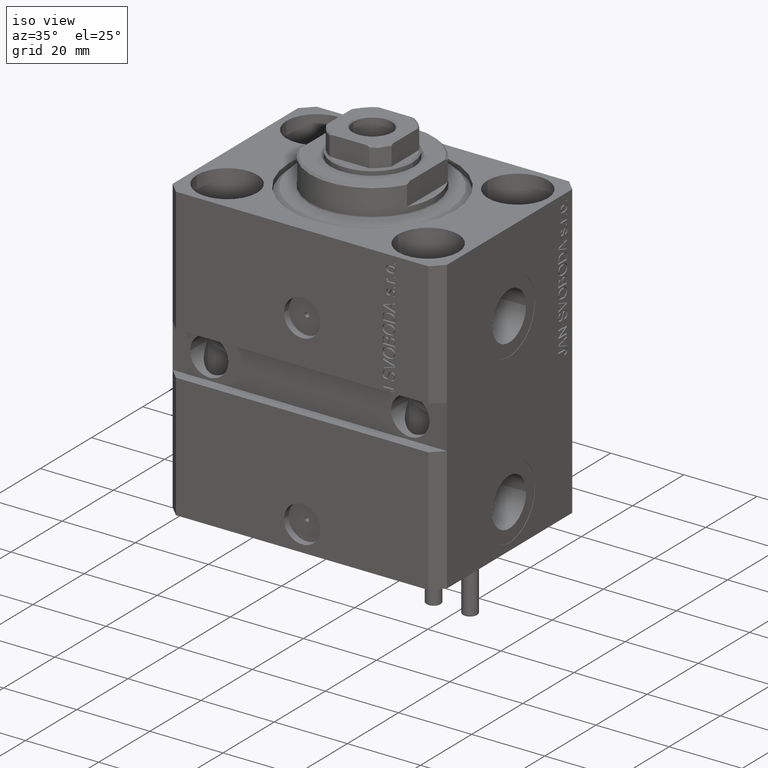
[diagram: clean part render]
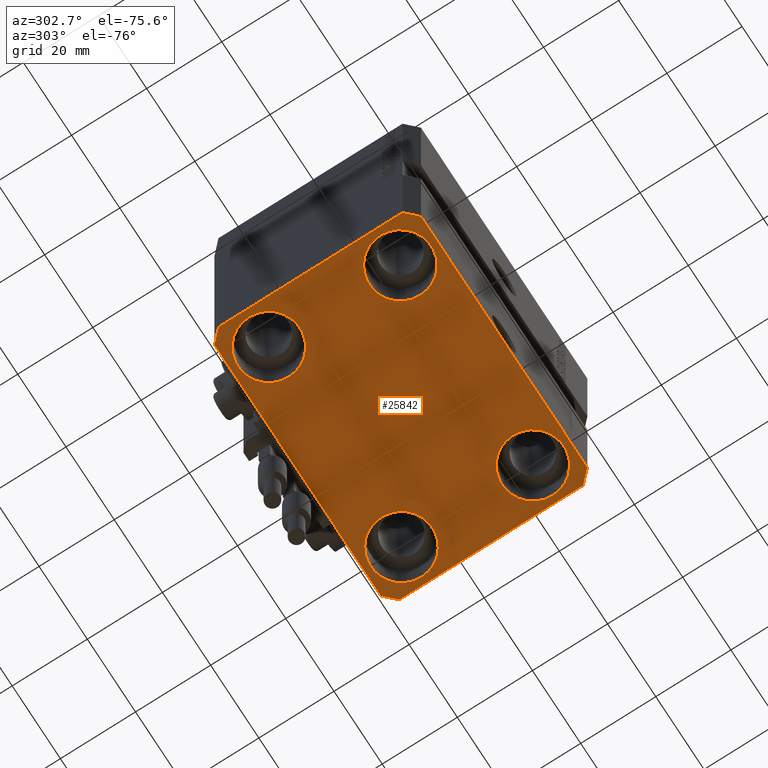
[diagram: tour spotlight — one face highlighted and labeled with its STEP entity id]
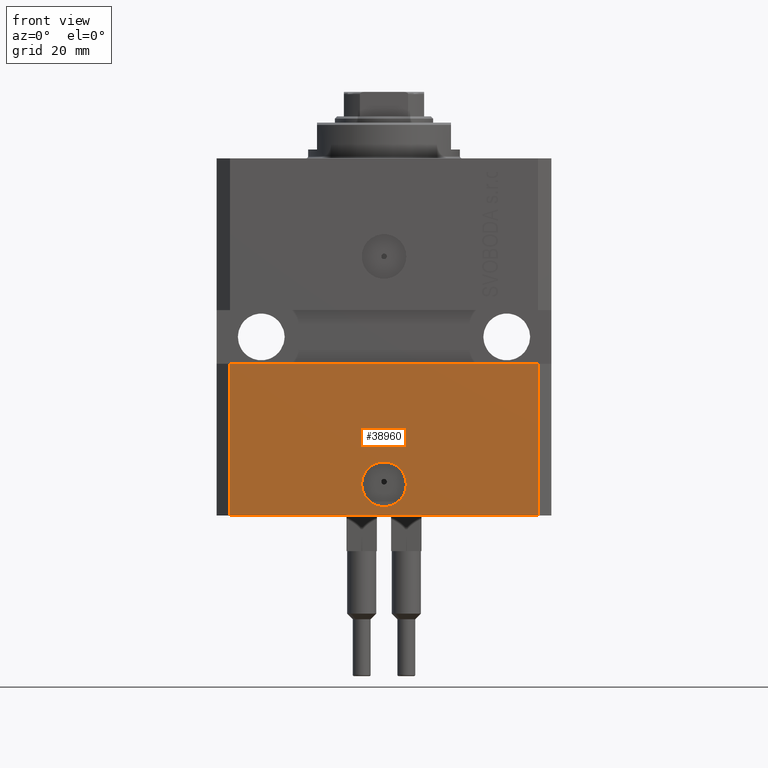
[diagram: tour spotlight — one face highlighted and labeled with its STEP entity id]
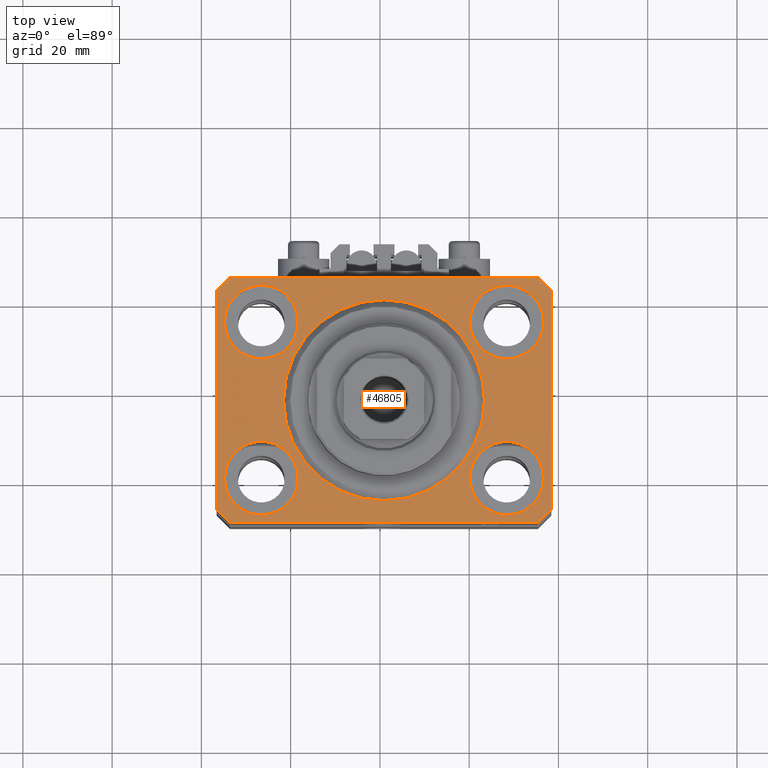
[diagram: tour spotlight — one face highlighted and labeled with its STEP entity id]
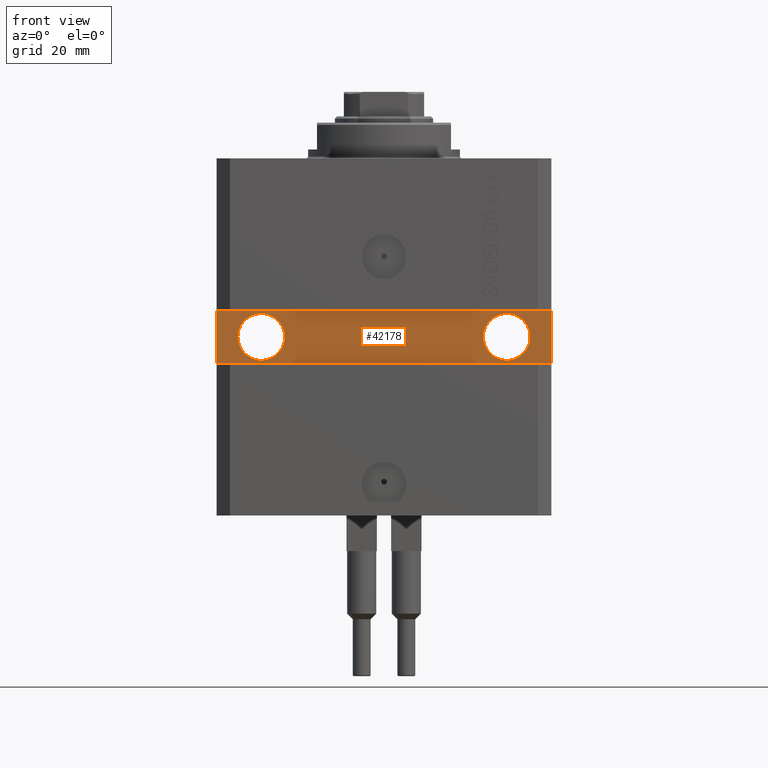
[diagram: tour spotlight — one face highlighted and labeled with its STEP entity id]
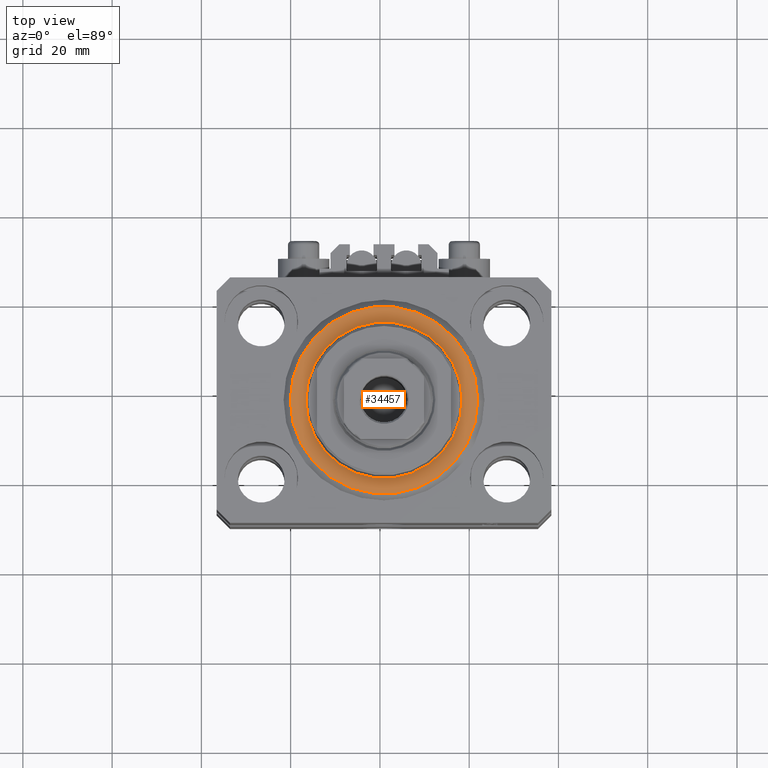
[diagram: tour spotlight — one face highlighted and labeled with its STEP entity id]
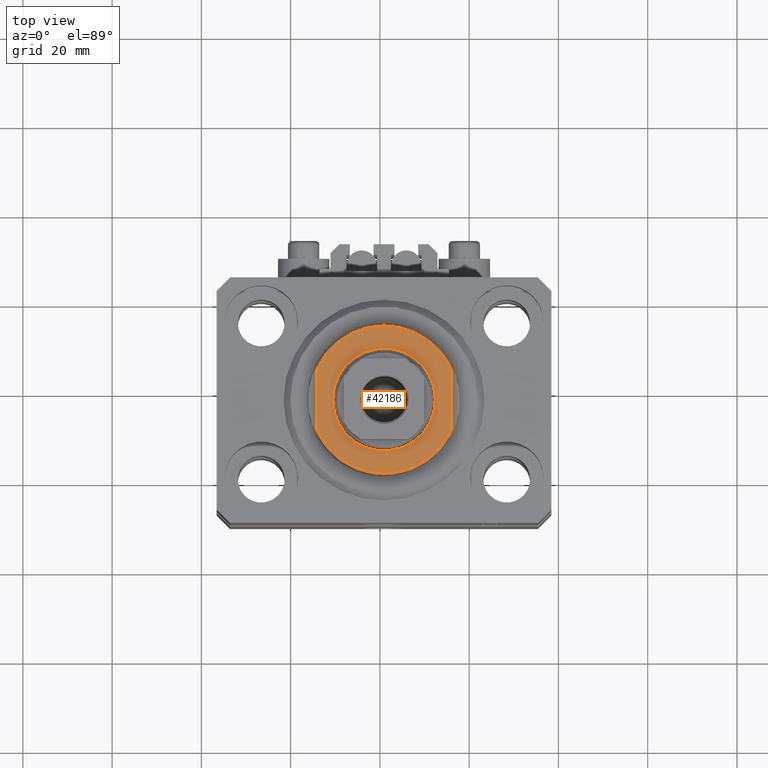
[diagram: tour spotlight — one face highlighted and labeled with its STEP entity id]
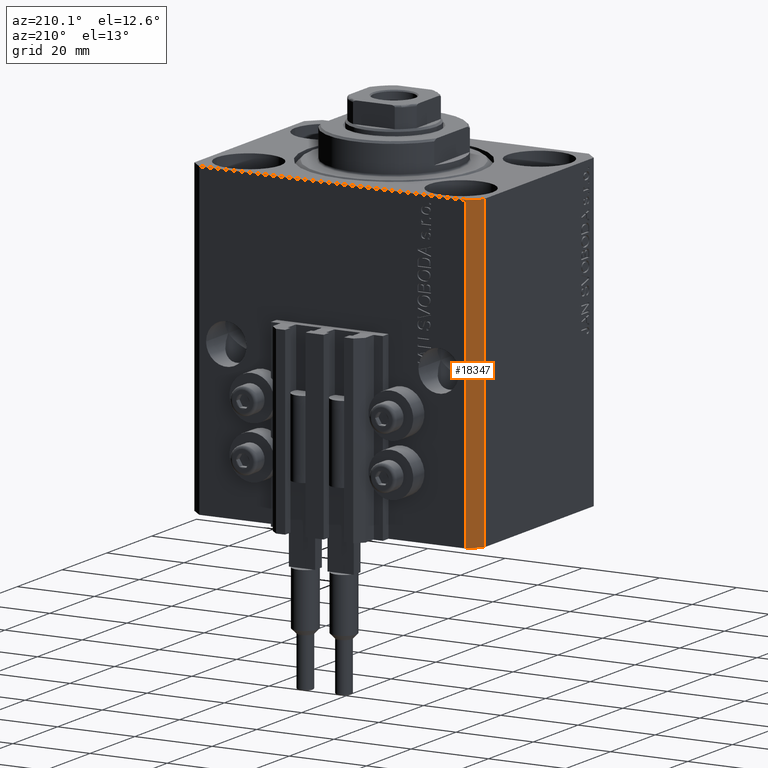
[diagram: tour spotlight — one face highlighted and labeled with its STEP entity id]
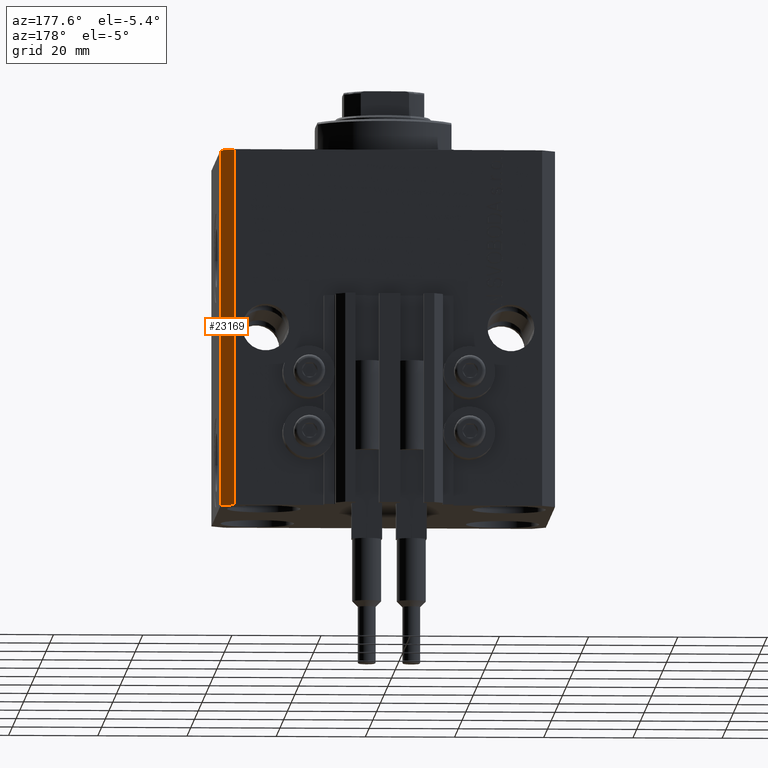
[diagram: tour spotlight — one face highlighted and labeled with its STEP entity id]
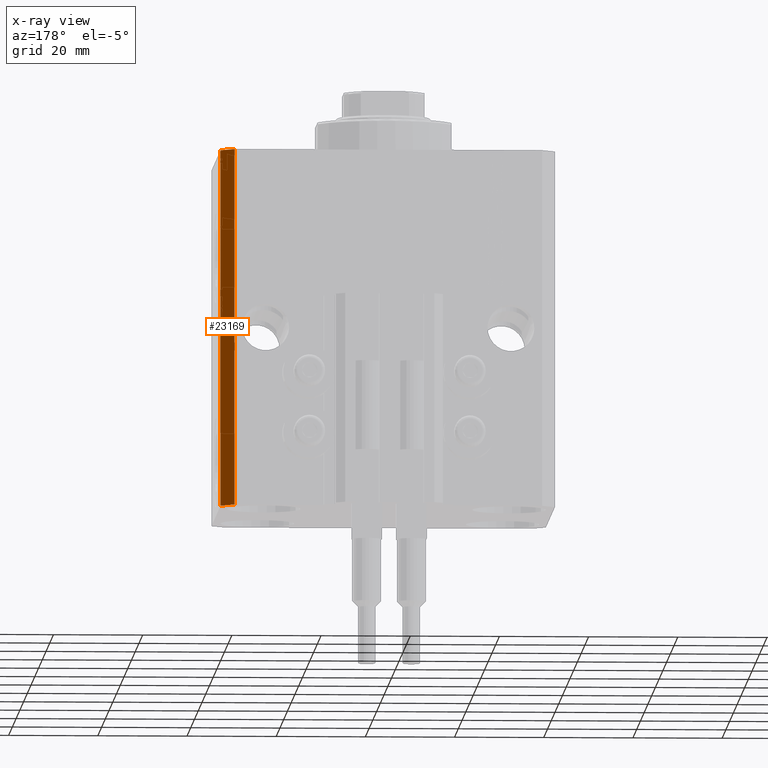
[diagram: x-ray of the same camera — body ghosted, this tour face saturated]
A machine part: a face-by-face anatomy tour. The part has 1116 B-rep faces; the first image is the clean iso view, then the 8 largest visible faces are spotlighted one at a time (largest first), each with its STEP entity span.

Face 1 — auxiliary view, entity #25842. In plain terms, the highlighted planar face has unit normal (0, 0, 1).
Definition (entity closure, byte-faithful):
#22 = FACE_BOUND ( 'NONE', #45294, .T. ) ;
#766 = VERTEX_POINT ( 'NONE', #40538 ) ;
#1073 = EDGE_CURVE ( 'NONE', #3069, #29796, #27669, .T. ) ;
#1632 = DIRECTION ( 'NONE',  ( 1.000000000000000000, 0.000000000000000000, 0.000000000000000000 ) ) ;
#1770 = EDGE_LOOP ( 'NONE', ( #36707, #7430, #33067, #47269, #34031, #39716, #23382, #20249 ) ) ;
#2260 = DIRECTION ( 'NONE',  ( 1.000000000000000000, 0.000000000000000000, 0.000000000000000000 ) ) ;
#2615 = CARTESIAN_POINT ( 'NONE',  ( -37.49999999999999289, -24.50000000000000000, -80.00000000000000000 ) ) ;
#2793 = VERTEX_POINT ( 'NONE', #18978 ) ;
#3069 = VERTEX_POINT ( 'NONE', #32662 ) ;
#3157 = EDGE_CURVE ( 'NONE', #44984, #30299, #44667, .T. ) ;
#3746 = DIRECTION ( 'NONE',  ( 0.7071067811865483499, -0.7071067811865466846, 0.000000000000000000 ) ) ;
#3748 = LINE ( 'NONE', #15069, #24715 ) ;
#3867 = DIRECTION ( 'NONE',  ( 0.000000000000000000, 0.000000000000000000, 1.000000000000000000 ) ) ;
#4248 = CARTESIAN_POINT ( 'NONE',  ( 27.49999999999999645, 17.50000000000001066, -80.00000000000000000 ) ) ;
#4337 = FACE_OUTER_BOUND ( 'NONE', #1770, .T. ) ;
#4560 = FACE_BOUND ( 'NONE', #22302, .T. ) ;
#6950 = CIRCLE ( 'NONE', #23121, 8.250000000000000000 ) ;
#7430 = ORIENTED_EDGE ( 'NONE', *, *, #31462, .F. ) ;
#8086 = VERTEX_POINT ( 'NONE', #22115 ) ;
#8500 = ORIENTED_EDGE ( 'NONE', *, *, #26323, .T. ) ;
#8786 = ORIENTED_EDGE ( 'NONE', *, *, #14716, .T. ) ;
#8832 = DIRECTION ( 'NONE',  ( -0.000000000000000000, -0.000000000000000000, 1.000000000000000000 ) ) ;
#9097 = VERTEX_POINT ( 'NONE', #32720 ) ;
#9777 = ORIENTED_EDGE ( 'NONE', *, *, #43902, .T. ) ;
#9822 = CARTESIAN_POINT ( 'NONE',  ( -27.50000000000000355, -17.50000000000000000, -80.00000000000000000 ) ) ;
#10070 = DIRECTION ( 'NONE',  ( -0.000000000000000000, -0.000000000000000000, 1.000000000000000000 ) ) ;
#10266 = CARTESIAN_POINT ( 'NONE',  ( -37.49999999999999289, -24.50000000000000000, -80.00000000000000000 ) ) ;
#10693 = DIRECTION ( 'NONE',  ( 0.7071067811865474617, 0.7071067811865474617, 0.000000000000000000 ) ) ;
#11000 = DIRECTION ( 'NONE',  ( 1.000000000000000000, 0.000000000000000000, 0.000000000000000000 ) ) ;
#11211 = DIRECTION ( 'NONE',  ( -0.7071067811865356934, 0.7071067811865594521, 0.000000000000000000 ) ) ;
#12091 = VECTOR ( 'NONE', #1632, 1000.000000000000000 ) ;
#12272 = EDGE_CURVE ( 'NONE', #41668, #8086, #33845, .T. ) ;
#12448 = VECTOR ( 'NONE', #10693, 1000.000000000000114 ) ;
#12507 = LINE ( 'NONE', #27213, #43483 ) ;
#12514 = EDGE_CURVE ( 'NONE', #2793, #39693, #12507, .T. ) ;
#13580 = EDGE_CURVE ( 'NONE', #22053, #2793, #28360, .T. ) ;
#14716 = EDGE_CURVE ( 'NONE', #29796, #3069, #46618, .T. ) ;
#15069 = CARTESIAN_POINT ( 'NONE',  ( 37.50000000000051870, 24.49999999999995381, -80.00000000000000000 ) ) ;
#15514 = CARTESIAN_POINT ( 'NONE',  ( 37.49999999999999289, -24.50000000000000000, -80.00000000000000000 ) ) ;
#15769 = DIRECTION ( 'NONE',  ( 0.000000000000000000, -1.000000000000000000, 0.000000000000000000 ) ) ;
#16032 = CIRCLE ( 'NONE', #26047, 8.250000000000000000 ) ;
#16560 = EDGE_LOOP ( 'NONE', ( #37792, #35537 ) ) ;
#18292 = DIRECTION ( 'NONE',  ( -0.000000000000000000, -0.000000000000000000, 1.000000000000000000 ) ) ;
#18552 = DIRECTION ( 'NONE',  ( 1.000000000000000000, 0.000000000000000000, 0.000000000000000000 ) ) ;
#18656 = VECTOR ( 'NONE', #3746, 1000.000000000000000 ) ;
#18774 = DIRECTION ( 'NONE',  ( 1.000000000000000000, 0.000000000000000000, 0.000000000000000000 ) ) ;
#18942 = EDGE_CURVE ( 'NONE', #43019, #36138, #33695, .T. ) ;
#18978 = CARTESIAN_POINT ( 'NONE',  ( -34.49999999999999289, 27.50000000000000000, -80.00000000000000000 ) ) ;
#19015 = DIRECTION ( 'NONE',  ( 1.000000000000000000, 0.000000000000000000, -0.000000000000000000 ) ) ;
#19024 = CARTESIAN_POINT ( 'NONE',  ( 27.50000000000000355, -17.50000000000000000, -80.00000000000000000 ) ) ;
#19052 = CARTESIAN_POINT ( 'NONE',  ( 34.50000000000056843, 27.50000000000000000, -80.00000000000000000 ) ) ;
#19088 = CARTESIAN_POINT ( 'NONE',  ( 34.49999999999999289, -27.49999999999999645, -80.00000000000000000 ) ) ;
#19312 = CARTESIAN_POINT ( 'NONE',  ( 35.74999999999999289, 17.50000000000001066, -80.00000000000000000 ) ) ;
#20249 = ORIENTED_EDGE ( 'NONE', *, *, #12514, .F. ) ;
#20497 = CARTESIAN_POINT ( 'NONE',  ( -35.75000000000000711, -17.50000000000000000, -80.00000000000000000 ) ) ;
#21272 = CARTESIAN_POINT ( 'NONE',  ( 27.50000000000000355, -17.50000000000000000, -80.00000000000000000 ) ) ;
#21568 = EDGE_CURVE ( 'NONE', #30299, #44984, #16032, .T. ) ;
#21841 = DIRECTION ( 'NONE',  ( 1.000000000000000000, 0.000000000000000000, 0.000000000000000000 ) ) ;
#22053 = VERTEX_POINT ( 'NONE', #19052 ) ;
#22115 = CARTESIAN_POINT ( 'NONE',  ( 37.50000000000051870, 24.49999999999995381, -80.00000000000000000 ) ) ;
#22302 = EDGE_LOOP ( 'NONE', ( #46600, #36775 ) ) ;
#23045 = AXIS2_PLACEMENT_3D ( 'NONE', #29336, #47651, #11000 ) ;
#23121 = AXIS2_PLACEMENT_3D ( 'NONE', #33735, #18292, #18774 ) ;
#23382 = ORIENTED_EDGE ( 'NONE', *, *, #26226, .F. ) ;
#24416 = EDGE_CURVE ( 'NONE', #766, #40358, #30788, .T. ) ;
#24599 = AXIS2_PLACEMENT_3D ( 'NONE', #26660, #8832, #46427 ) ;
#24715 = VECTOR ( 'NONE', #11211, 1000.000000000000114 ) ;
#25061 = CARTESIAN_POINT ( 'NONE',  ( -19.25000000000000355, 17.50000000000000000, -80.00000000000000000 ) ) ;
#25842 = ADVANCED_FACE ( 'NONE', ( #37608, #22, #37377, #4560, #4337 ), #40755, .F. ) ;
#26047 = AXIS2_PLACEMENT_3D ( 'NONE', #9822, #10070, #21841 ) ;
#26226 = EDGE_CURVE ( 'NONE', #39693, #30294, #41829, .T. ) ;
#26323 = EDGE_CURVE ( 'NONE', #9097, #28066, #29191, .T. ) ;
#26351 = DIRECTION ( 'NONE',  ( 1.000000000000000000, 0.000000000000000000, 0.000000000000000000 ) ) ;
#26660 = CARTESIAN_POINT ( 'NONE',  ( -27.50000000000000355, 17.50000000000000000, -80.00000000000000000 ) ) ;
#27213 = CARTESIAN_POINT ( 'NONE',  ( -34.49999999999999289, 27.50000000000000000, -80.00000000000000000 ) ) ;
#27446 = DIRECTION ( 'NONE',  ( -0.7071067811865471286, -0.7071067811865479058, 0.000000000000000000 ) ) ;
#27669 = CIRCLE ( 'NONE', #23045, 8.249999999999992895 ) ;
#27814 = ORIENTED_EDGE ( 'NONE', *, *, #1073, .T. ) ;
#28066 = VERTEX_POINT ( 'NONE', #38325 ) ;
#28360 = LINE ( 'NONE', #35357, #35018 ) ;
#28969 = CARTESIAN_POINT ( 'NONE',  ( 34.49999999999999289, -27.49999999999999645, -80.00000000000000000 ) ) ;
#29191 = CIRCLE ( 'NONE', #38542, 8.250000000000000000 ) ;
#29336 = CARTESIAN_POINT ( 'NONE',  ( 27.49999999999999645, 17.50000000000001066, -80.00000000000000000 ) ) ;
#29544 = LINE ( 'NONE', #10266, #18656 ) ;
#29578 = DIRECTION ( 'NONE',  ( -0.000000000000000000, -0.000000000000000000, 1.000000000000000000 ) ) ;
#29749 = LINE ( 'NONE', #19088, #12448 ) ;
#29796 = VERTEX_POINT ( 'NONE', #19312 ) ;
#29980 = CARTESIAN_POINT ( 'NONE',  ( -27.50000000000000355, -17.50000000000000000, -80.00000000000000000 ) ) ;
#30063 = AXIS2_PLACEMENT_3D ( 'NONE', #29980, #40838, #26351 ) ;
#30088 = EDGE_CURVE ( 'NONE', #40358, #766, #6950, .T. ) ;
#30242 = DIRECTION ( 'NONE',  ( 1.076236605503979380E-14, 1.000000000000000000, 0.000000000000000000 ) ) ;
#30294 = VERTEX_POINT ( 'NONE', #2615 ) ;
#30299 = VERTEX_POINT ( 'NONE', #46496 ) ;
#30788 = CIRCLE ( 'NONE', #24599, 8.250000000000000000 ) ;
#31462 = EDGE_CURVE ( 'NONE', #8086, #22053, #3748, .T. ) ;
#32150 = CARTESIAN_POINT ( 'NONE',  ( 37.49999999999999289, -24.50000000000000000, -80.00000000000000000 ) ) ;
#32662 = CARTESIAN_POINT ( 'NONE',  ( 19.25000000000000000, 17.50000000000001066, -80.00000000000000000 ) ) ;
#32720 = CARTESIAN_POINT ( 'NONE',  ( 35.75000000000000711, -17.50000000000000000, -80.00000000000000000 ) ) ;
#32761 = AXIS2_PLACEMENT_3D ( 'NONE', #4248, #29578, #33656 ) ;
#33067 = ORIENTED_EDGE ( 'NONE', *, *, #12272, .F. ) ;
#33656 = DIRECTION ( 'NONE',  ( 1.000000000000000000, 0.000000000000000000, 0.000000000000000000 ) ) ;
#33695 = LINE ( 'NONE', #41659, #12091 ) ;
#33735 = CARTESIAN_POINT ( 'NONE',  ( -27.50000000000000355, 17.50000000000000000, -80.00000000000000000 ) ) ;
#33797 = AXIS2_PLACEMENT_3D ( 'NONE', #44370, #3867, #19015 ) ;
#33845 = LINE ( 'NONE', #15514, #37332 ) ;
#34031 = ORIENTED_EDGE ( 'NONE', *, *, #18942, .F. ) ;
#34822 = AXIS2_PLACEMENT_3D ( 'NONE', #19024, #45096, #18552 ) ;
#35018 = VECTOR ( 'NONE', #45996, 1000.000000000000000 ) ;
#35357 = CARTESIAN_POINT ( 'NONE',  ( 34.50000000000056843, 27.50000000000000000, -80.00000000000000000 ) ) ;
#35537 = ORIENTED_EDGE ( 'NONE', *, *, #21568, .T. ) ;
#36138 = VERTEX_POINT ( 'NONE', #28969 ) ;
#36707 = ORIENTED_EDGE ( 'NONE', *, *, #13580, .F. ) ;
#36737 = CARTESIAN_POINT ( 'NONE',  ( -37.49999999999999289, 24.50000000000000000, -80.00000000000000000 ) ) ;
#36775 = ORIENTED_EDGE ( 'NONE', *, *, #30088, .T. ) ;
#37332 = VECTOR ( 'NONE', #30242, 1000.000000000000000 ) ;
#37377 = FACE_BOUND ( 'NONE', #38376, .T. ) ;
#37608 = FACE_BOUND ( 'NONE', #16560, .T. ) ;
#37792 = ORIENTED_EDGE ( 'NONE', *, *, #3157, .T. ) ;
#37899 = CIRCLE ( 'NONE', #34822, 8.250000000000000000 ) ;
#38325 = CARTESIAN_POINT ( 'NONE',  ( 19.25000000000000000, -17.50000000000000000, -80.00000000000000000 ) ) ;
#38376 = EDGE_LOOP ( 'NONE', ( #27814, #8786 ) ) ;
#38542 = AXIS2_PLACEMENT_3D ( 'NONE', #21272, #46623, #2260 ) ;
#39693 = VERTEX_POINT ( 'NONE', #36737 ) ;
#39716 = ORIENTED_EDGE ( 'NONE', *, *, #42415, .F. ) ;
#39747 = EDGE_CURVE ( 'NONE', #36138, #41668, #29749, .T. ) ;
#40358 = VERTEX_POINT ( 'NONE', #25061 ) ;
#40538 = CARTESIAN_POINT ( 'NONE',  ( -35.75000000000000711, 17.50000000000000000, -80.00000000000000000 ) ) ;
#40755 = PLANE ( 'NONE',  #33797 ) ;
#40838 = DIRECTION ( 'NONE',  ( -0.000000000000000000, -0.000000000000000000, 1.000000000000000000 ) ) ;
#41659 = CARTESIAN_POINT ( 'NONE',  ( -34.49999999999998579, -27.49999999999999645, -80.00000000000000000 ) ) ;
#41668 = VERTEX_POINT ( 'NONE', #32150 ) ;
#41829 = LINE ( 'NONE', #45200, #46997 ) ;
#42415 = EDGE_CURVE ( 'NONE', #30294, #43019, #29544, .T. ) ;
#43019 = VERTEX_POINT ( 'NONE', #47280 ) ;
#43483 = VECTOR ( 'NONE', #27446, 1000.000000000000000 ) ;
#43902 = EDGE_CURVE ( 'NONE', #28066, #9097, #37899, .T. ) ;
#44370 = CARTESIAN_POINT ( 'NONE',  ( 0.000000000000000000, 0.000000000000000000, -80.00000000000000000 ) ) ;
#44667 = CIRCLE ( 'NONE', #30063, 8.250000000000000000 ) ;
#44984 = VERTEX_POINT ( 'NONE', #20497 ) ;
#45096 = DIRECTION ( 'NONE',  ( -0.000000000000000000, -0.000000000000000000, 1.000000000000000000 ) ) ;
#45200 = CARTESIAN_POINT ( 'NONE',  ( -37.49999999999999289, 24.50000000000000000, -80.00000000000000000 ) ) ;
#45294 = EDGE_LOOP ( 'NONE', ( #9777, #8500 ) ) ;
#45996 = DIRECTION ( 'NONE',  ( -1.000000000000000000, 0.000000000000000000, 0.000000000000000000 ) ) ;
#46427 = DIRECTION ( 'NONE',  ( 1.000000000000000000, 0.000000000000000000, 0.000000000000000000 ) ) ;
#46496 = CARTESIAN_POINT ( 'NONE',  ( -19.25000000000000355, -17.50000000000000000, -80.00000000000000000 ) ) ;
#46600 = ORIENTED_EDGE ( 'NONE', *, *, #24416, .T. ) ;
#46618 = CIRCLE ( 'NONE', #32761, 8.249999999999992895 ) ;
#46623 = DIRECTION ( 'NONE',  ( -0.000000000000000000, -0.000000000000000000, 1.000000000000000000 ) ) ;
#46997 = VECTOR ( 'NONE', #15769, 1000.000000000000000 ) ;
#47269 = ORIENTED_EDGE ( 'NONE', *, *, #39747, .F. ) ;
#47280 = CARTESIAN_POINT ( 'NONE',  ( -34.49999999999998579, -27.49999999999999645, -80.00000000000000000 ) ) ;
#47651 = DIRECTION ( 'NONE',  ( -0.000000000000000000, -0.000000000000000000, 1.000000000000000000 ) ) ;

Face 2 — front view, entity #38960. In plain terms, the highlighted planar face has unit normal (0, -1, 0).
Definition (entity closure, byte-faithful):
#628 = DIRECTION ( 'NONE',  ( 1.000000000000000000, 0.000000000000000000, 0.000000000000000000 ) ) ;
#1632 = DIRECTION ( 'NONE',  ( 1.000000000000000000, 0.000000000000000000, 0.000000000000000000 ) ) ;
#2554 = EDGE_CURVE ( 'NONE', #36138, #31050, #29197, .T. ) ;
#2863 = DIRECTION ( 'NONE',  ( 1.000000000000000000, 0.000000000000000000, 0.000000000000000000 ) ) ;
#4634 = ORIENTED_EDGE ( 'NONE', *, *, #41858, .F. ) ;
#5544 = EDGE_CURVE ( 'NONE', #32086, #35840, #17008, .T. ) ;
#6230 = AXIS2_PLACEMENT_3D ( 'NONE', #33584, #25635, #18365 ) ;
#7913 = EDGE_LOOP ( 'NONE', ( #4634, #22272 ) ) ;
#9548 = DIRECTION ( 'NONE',  ( 0.000000000000000000, 0.000000000000000000, 1.000000000000000000 ) ) ;
#10998 = ORIENTED_EDGE ( 'NONE', *, *, #2554, .T. ) ;
#11100 = CARTESIAN_POINT ( 'NONE',  ( 34.49999999999999289, -27.49999999999999645, -80.00000000000000000 ) ) ;
#12091 = VECTOR ( 'NONE', #1632, 1000.000000000000000 ) ;
#12833 = EDGE_CURVE ( 'NONE', #47540, #31050, #32912, .T. ) ;
#13168 = LINE ( 'NONE', #20611, #34566 ) ;
#14601 = DIRECTION ( 'NONE',  ( 1.176083712526788232E-16, -1.000000000000000000, 0.000000000000000000 ) ) ;
#14822 = AXIS2_PLACEMENT_3D ( 'NONE', #28653, #45379, #2863 ) ;
#15016 = FACE_BOUND ( 'NONE', #7913, .T. ) ;
#17008 = CIRCLE ( 'NONE', #34742, 5.000000000000006217 ) ;
#17590 = ORIENTED_EDGE ( 'NONE', *, *, #12833, .F. ) ;
#18074 = VECTOR ( 'NONE', #28581, 1000.000000000000000 ) ;
#18082 = CARTESIAN_POINT ( 'NONE',  ( -34.49999999999998579, -27.50000000000000000, -46.00000000000000000 ) ) ;
#18365 = DIRECTION ( 'NONE',  ( 0.000000000000000000, -0.000000000000000000, -1.000000000000000000 ) ) ;
#18942 = EDGE_CURVE ( 'NONE', #43019, #36138, #33695, .T. ) ;
#19133 = ORIENTED_EDGE ( 'NONE', *, *, #26155, .F. ) ;
#20611 = CARTESIAN_POINT ( 'NONE',  ( -34.49999999999998579, -27.49999999999999645, -80.00000000000000000 ) ) ;
#22237 = FACE_OUTER_BOUND ( 'NONE', #27706, .T. ) ;
#22272 = ORIENTED_EDGE ( 'NONE', *, *, #5544, .F. ) ;
#22417 = CARTESIAN_POINT ( 'NONE',  ( -5.000000000000006217, -27.49999999999999645, -73.00000000000000000 ) ) ;
#23282 = CIRCLE ( 'NONE', #14822, 5.000000000000006217 ) ;
#25579 = DIRECTION ( 'NONE',  ( 0.000000000000000000, 0.000000000000000000, 1.000000000000000000 ) ) ;
#25635 = DIRECTION ( 'NONE',  ( 0.000000000000000000, -1.000000000000000000, 0.000000000000000000 ) ) ;
#26155 = EDGE_CURVE ( 'NONE', #43019, #47540, #13168, .T. ) ;
#26938 = CARTESIAN_POINT ( 'NONE',  ( 5.000000000000006217, -27.49999999999999645, -73.00000000000000000 ) ) ;
#27546 = ORIENTED_EDGE ( 'NONE', *, *, #18942, .T. ) ;
#27706 = EDGE_LOOP ( 'NONE', ( #17590, #19133, #27546, #10998 ) ) ;
#28327 = CARTESIAN_POINT ( 'NONE',  ( -37.50000000000000000, -27.50000000000000000, -46.00000000000000000 ) ) ;
#28581 = DIRECTION ( 'NONE',  ( 1.000000000000000000, 9.251858538542972814E-17, 0.000000000000000000 ) ) ;
#28653 = CARTESIAN_POINT ( 'NONE',  ( 0.000000000000000000, -27.49999999999999645, -73.00000000000000000 ) ) ;
#28969 = CARTESIAN_POINT ( 'NONE',  ( 34.49999999999999289, -27.49999999999999645, -80.00000000000000000 ) ) ;
#29197 = LINE ( 'NONE', #11100, #46201 ) ;
#29741 = PLANE ( 'NONE',  #6230 ) ;
#31050 = VERTEX_POINT ( 'NONE', #38803 ) ;
#32086 = VERTEX_POINT ( 'NONE', #22417 ) ;
#32912 = LINE ( 'NONE', #28327, #18074 ) ;
#33584 = CARTESIAN_POINT ( 'NONE',  ( -34.49999999999998579, -27.49999999999999645, -80.00000000000000000 ) ) ;
#33695 = LINE ( 'NONE', #41659, #12091 ) ;
#34566 = VECTOR ( 'NONE', #9548, 1000.000000000000000 ) ;
#34742 = AXIS2_PLACEMENT_3D ( 'NONE', #36791, #14601, #628 ) ;
#35840 = VERTEX_POINT ( 'NONE', #26938 ) ;
#36138 = VERTEX_POINT ( 'NONE', #28969 ) ;
#36791 = CARTESIAN_POINT ( 'NONE',  ( 0.000000000000000000, -27.49999999999999645, -73.00000000000000000 ) ) ;
#38803 = CARTESIAN_POINT ( 'NONE',  ( 34.49999999999999289, -27.49999999999999289, -46.00000000000000000 ) ) ;
#38960 = ADVANCED_FACE ( 'NONE', ( #15016, #22237 ), #29741, .T. ) ;
#41659 = CARTESIAN_POINT ( 'NONE',  ( -34.49999999999998579, -27.49999999999999645, -80.00000000000000000 ) ) ;
#41858 = EDGE_CURVE ( 'NONE', #35840, #32086, #23282, .T. ) ;
#43019 = VERTEX_POINT ( 'NONE', #47280 ) ;
#45379 = DIRECTION ( 'NONE',  ( 1.176083712526788232E-16, -1.000000000000000000, 0.000000000000000000 ) ) ;
#46201 = VECTOR ( 'NONE', #25579, 1000.000000000000000 ) ;
#47280 = CARTESIAN_POINT ( 'NONE',  ( -34.49999999999998579, -27.49999999999999645, -80.00000000000000000 ) ) ;
#47540 = VERTEX_POINT ( 'NONE', #18082 ) ;

Face 3 — top view, entity #46805. In plain terms, the highlighted planar face has unit normal (0, 0, 1).
Definition (entity closure, byte-faithful):
#167 = CARTESIAN_POINT ( 'NONE',  ( -19.25000000000000355, -17.50000000000000000, 0.000000000000000000 ) ) ;
#299 = CARTESIAN_POINT ( 'NONE',  ( -22.50000000000000355, 2.755455298081544383E-15, 0.000000000000000000 ) ) ;
#312 = CIRCLE ( 'NONE', #34953, 8.250000000000000000 ) ;
#463 = DIRECTION ( 'NONE',  ( 0.7071067811865483499, -0.7071067811865466846, 0.000000000000000000 ) ) ;
#473 = CARTESIAN_POINT ( 'NONE',  ( -34.49999999999999289, 27.50000000000000000, 0.000000000000000000 ) ) ;
#1144 = EDGE_CURVE ( 'NONE', #15094, #6797, #34853, .T. ) ;
#1659 = DIRECTION ( 'NONE',  ( 1.000000000000000000, 0.000000000000000000, 0.000000000000000000 ) ) ;
#1670 = VECTOR ( 'NONE', #44824, 1000.000000000000000 ) ;
#1999 = CARTESIAN_POINT ( 'NONE',  ( 37.49999999999999289, -24.50000000000000000, 0.000000000000000000 ) ) ;
#2022 = EDGE_CURVE ( 'NONE', #11068, #17319, #22287, .T. ) ;
#2233 = CARTESIAN_POINT ( 'NONE',  ( 27.50000000000000355, -17.50000000000000000, 0.000000000000000000 ) ) ;
#2330 = FACE_BOUND ( 'NONE', #31054, .T. ) ;
#2485 = CARTESIAN_POINT ( 'NONE',  ( 37.50000000000051870, 24.49999999999995381, 0.000000000000000000 ) ) ;
#2959 = DIRECTION ( 'NONE',  ( 1.000000000000000000, 0.000000000000000000, 0.000000000000000000 ) ) ;
#3039 = VERTEX_POINT ( 'NONE', #47130 ) ;
#3842 = ORIENTED_EDGE ( 'NONE', *, *, #7659, .F. ) ;
#4243 = LINE ( 'NONE', #38002, #22919 ) ;
#4247 = ORIENTED_EDGE ( 'NONE', *, *, #30918, .T. ) ;
#4557 = DIRECTION ( 'NONE',  ( 1.000000000000000000, 0.000000000000000000, 0.000000000000000000 ) ) ;
#4828 = ORIENTED_EDGE ( 'NONE', *, *, #44140, .F. ) ;
#5387 = AXIS2_PLACEMENT_3D ( 'NONE', #24381, #5596, #31407 ) ;
#5433 = CARTESIAN_POINT ( 'NONE',  ( -27.50000000000000355, -17.50000000000000000, 0.000000000000000000 ) ) ;
#5596 = DIRECTION ( 'NONE',  ( 0.000000000000000000, 0.000000000000000000, 1.000000000000000000 ) ) ;
#5763 = CARTESIAN_POINT ( 'NONE',  ( 35.75000000000000711, -17.50000000000000000, 0.000000000000000000 ) ) ;
#5975 = CARTESIAN_POINT ( 'NONE',  ( 19.25000000000000000, -17.50000000000000000, 0.000000000000000000 ) ) ;
#6029 = VERTEX_POINT ( 'NONE', #32058 ) ;
#6158 = PLANE ( 'NONE',  #25658 ) ;
#6255 = AXIS2_PLACEMENT_3D ( 'NONE', #18956, #18244, #14886 ) ;
#6394 = VERTEX_POINT ( 'NONE', #167 ) ;
#6475 = CIRCLE ( 'NONE', #24171, 22.50000000000000355 ) ;
#6797 = VERTEX_POINT ( 'NONE', #1999 ) ;
#7069 = CIRCLE ( 'NONE', #45615, 8.249999999999992895 ) ;
#7253 = EDGE_CURVE ( 'NONE', #14448, #6394, #312, .T. ) ;
#7382 = VECTOR ( 'NONE', #45796, 1000.000000000000114 ) ;
#7398 = CARTESIAN_POINT ( 'NONE',  ( 22.50000000000000355, 0.000000000000000000, 0.000000000000000000 ) ) ;
#7653 = AXIS2_PLACEMENT_3D ( 'NONE', #27373, #38478, #8822 ) ;
#7659 = EDGE_CURVE ( 'NONE', #12022, #40962, #6475, .T. ) ;
#8104 = VECTOR ( 'NONE', #463, 1000.000000000000000 ) ;
#8822 = DIRECTION ( 'NONE',  ( 1.000000000000000000, 0.000000000000000000, 0.000000000000000000 ) ) ;
#9280 = VERTEX_POINT ( 'NONE', #37998 ) ;
#9426 = DIRECTION ( 'NONE',  ( 1.000000000000000000, 0.000000000000000000, 0.000000000000000000 ) ) ;
#9569 = DIRECTION ( 'NONE',  ( -1.000000000000000000, 0.000000000000000000, 0.000000000000000000 ) ) ;
#9791 = FACE_BOUND ( 'NONE', #29150, .T. ) ;
#10400 = CIRCLE ( 'NONE', #38874, 8.250000000000000000 ) ;
#11068 = VERTEX_POINT ( 'NONE', #12604 ) ;
#11084 = DIRECTION ( 'NONE',  ( 0.000000000000000000, 0.000000000000000000, 1.000000000000000000 ) ) ;
#11655 = DIRECTION ( 'NONE',  ( 1.000000000000000000, 0.000000000000000000, 0.000000000000000000 ) ) ;
#12022 = VERTEX_POINT ( 'NONE', #7398 ) ;
#12039 = DIRECTION ( 'NONE',  ( 0.000000000000000000, -1.000000000000000000, 0.000000000000000000 ) ) ;
#12209 = ORIENTED_EDGE ( 'NONE', *, *, #7253, .F. ) ;
#12576 = EDGE_CURVE ( 'NONE', #21876, #6029, #16808, .T. ) ;
#12604 = CARTESIAN_POINT ( 'NONE',  ( 35.74999999999999289, 17.50000000000001066, 0.000000000000000000 ) ) ;
#12718 = VECTOR ( 'NONE', #27098, 1000.000000000000000 ) ;
#12953 = CARTESIAN_POINT ( 'NONE',  ( 34.50000000000056843, 27.50000000000000000, 0.000000000000000000 ) ) ;
#12990 = EDGE_CURVE ( 'NONE', #47588, #15094, #45438, .T. ) ;
#13185 = VERTEX_POINT ( 'NONE', #23411 ) ;
#13197 = EDGE_CURVE ( 'NONE', #6394, #14448, #10400, .T. ) ;
#13954 = ORIENTED_EDGE ( 'NONE', *, *, #12990, .T. ) ;
#14299 = EDGE_CURVE ( 'NONE', #21548, #47588, #37345, .T. ) ;
#14315 = EDGE_LOOP ( 'NONE', ( #47169, #44106, #4247, #47318, #13954, #25514, #32116, #38001 ) ) ;
#14448 = VERTEX_POINT ( 'NONE', #41919 ) ;
#14886 = DIRECTION ( 'NONE',  ( 1.000000000000000000, 0.000000000000000000, 0.000000000000000000 ) ) ;
#15094 = VERTEX_POINT ( 'NONE', #22498 ) ;
#15499 = ORIENTED_EDGE ( 'NONE', *, *, #31297, .F. ) ;
#15918 = ORIENTED_EDGE ( 'NONE', *, *, #20838, .F. ) ;
#16808 = LINE ( 'NONE', #28385, #7382 ) ;
#17319 = VERTEX_POINT ( 'NONE', #29419 ) ;
#17906 = CARTESIAN_POINT ( 'NONE',  ( -37.49999999999999289, 24.50000000000000000, 0.000000000000000000 ) ) ;
#18244 = DIRECTION ( 'NONE',  ( 0.000000000000000000, 0.000000000000000000, 1.000000000000000000 ) ) ;
#18956 = CARTESIAN_POINT ( 'NONE',  ( -27.50000000000000355, 17.50000000000000000, 0.000000000000000000 ) ) ;
#19635 = DIRECTION ( 'NONE',  ( 1.076236605503979380E-14, 1.000000000000000000, 0.000000000000000000 ) ) ;
#20370 = EDGE_CURVE ( 'NONE', #6797, #21876, #4243, .T. ) ;
#20838 = EDGE_CURVE ( 'NONE', #40962, #12022, #33738, .T. ) ;
#20862 = DIRECTION ( 'NONE',  ( 1.000000000000000000, 0.000000000000000000, -0.000000000000000000 ) ) ;
#20899 = EDGE_LOOP ( 'NONE', ( #15499, #20984 ) ) ;
#20984 = ORIENTED_EDGE ( 'NONE', *, *, #23603, .F. ) ;
#21548 = VERTEX_POINT ( 'NONE', #40207 ) ;
#21876 = VERTEX_POINT ( 'NONE', #2485 ) ;
#22151 = ORIENTED_EDGE ( 'NONE', *, *, #2022, .F. ) ;
#22194 = VERTEX_POINT ( 'NONE', #24553 ) ;
#22287 = CIRCLE ( 'NONE', #40802, 8.249999999999992895 ) ;
#22418 = CARTESIAN_POINT ( 'NONE',  ( -34.49999999999998579, -27.49999999999999645, 0.000000000000000000 ) ) ;
#22498 = CARTESIAN_POINT ( 'NONE',  ( 34.49999999999999289, -27.49999999999999645, 0.000000000000000000 ) ) ;
#22708 = ORIENTED_EDGE ( 'NONE', *, *, #13197, .F. ) ;
#22842 = VERTEX_POINT ( 'NONE', #5763 ) ;
#22879 = LINE ( 'NONE', #17906, #27022 ) ;
#22919 = VECTOR ( 'NONE', #19635, 1000.000000000000000 ) ;
#23271 = DIRECTION ( 'NONE',  ( 0.7071067811865474617, 0.7071067811865474617, 0.000000000000000000 ) ) ;
#23326 = LINE ( 'NONE', #12953, #33991 ) ;
#23411 = CARTESIAN_POINT ( 'NONE',  ( -19.25000000000000355, 17.50000000000000000, 0.000000000000000000 ) ) ;
#23603 = EDGE_CURVE ( 'NONE', #9280, #13185, #35385, .T. ) ;
#23834 = ORIENTED_EDGE ( 'NONE', *, *, #36117, .F. ) ;
#24171 = AXIS2_PLACEMENT_3D ( 'NONE', #43934, #44412, #37653 ) ;
#24220 = DIRECTION ( 'NONE',  ( 1.000000000000000000, 0.000000000000000000, 0.000000000000000000 ) ) ;
#24381 = CARTESIAN_POINT ( 'NONE',  ( 27.50000000000000355, -17.50000000000000000, 0.000000000000000000 ) ) ;
#24484 = FACE_OUTER_BOUND ( 'NONE', #14315, .T. ) ;
#24520 = EDGE_LOOP ( 'NONE', ( #22708, #12209 ) ) ;
#24553 = CARTESIAN_POINT ( 'NONE',  ( -37.49999999999999289, 24.50000000000000000, 0.000000000000000000 ) ) ;
#24980 = EDGE_LOOP ( 'NONE', ( #32562, #23834 ) ) ;
#25514 = ORIENTED_EDGE ( 'NONE', *, *, #1144, .T. ) ;
#25658 = AXIS2_PLACEMENT_3D ( 'NONE', #32224, #46930, #20862 ) ;
#26174 = CIRCLE ( 'NONE', #5387, 8.250000000000000000 ) ;
#26485 = LINE ( 'NONE', #473, #1670 ) ;
#27022 = VECTOR ( 'NONE', #12039, 1000.000000000000000 ) ;
#27098 = DIRECTION ( 'NONE',  ( 1.000000000000000000, 0.000000000000000000, 0.000000000000000000 ) ) ;
#27204 = DIRECTION ( 'NONE',  ( 0.000000000000000000, 0.000000000000000000, 1.000000000000000000 ) ) ;
#27373 = CARTESIAN_POINT ( 'NONE',  ( -27.50000000000000355, 17.50000000000000000, 0.000000000000000000 ) ) ;
#27744 = CARTESIAN_POINT ( 'NONE',  ( -27.50000000000000355, -17.50000000000000000, 0.000000000000000000 ) ) ;
#27909 = CARTESIAN_POINT ( 'NONE',  ( 27.49999999999999645, 17.50000000000001066, 0.000000000000000000 ) ) ;
#28385 = CARTESIAN_POINT ( 'NONE',  ( 37.50000000000051870, 24.49999999999995381, 0.000000000000000000 ) ) ;
#28748 = DIRECTION ( 'NONE',  ( 0.000000000000000000, 0.000000000000000000, 1.000000000000000000 ) ) ;
#29150 = EDGE_LOOP ( 'NONE', ( #3842, #15918 ) ) ;
#29419 = CARTESIAN_POINT ( 'NONE',  ( 19.25000000000000000, 17.50000000000001066, 0.000000000000000000 ) ) ;
#29430 = CIRCLE ( 'NONE', #47162, 8.250000000000000000 ) ;
#30286 = CARTESIAN_POINT ( 'NONE',  ( 34.49999999999999289, -27.49999999999999645, 0.000000000000000000 ) ) ;
#30918 = EDGE_CURVE ( 'NONE', #22194, #21548, #22879, .T. ) ;
#31054 = EDGE_LOOP ( 'NONE', ( #22151, #4828 ) ) ;
#31297 = EDGE_CURVE ( 'NONE', #13185, #9280, #40906, .T. ) ;
#31407 = DIRECTION ( 'NONE',  ( 1.000000000000000000, 0.000000000000000000, 0.000000000000000000 ) ) ;
#31985 = FACE_BOUND ( 'NONE', #24980, .T. ) ;
#32058 = CARTESIAN_POINT ( 'NONE',  ( 34.50000000000056843, 27.50000000000000000, 0.000000000000000000 ) ) ;
#32116 = ORIENTED_EDGE ( 'NONE', *, *, #20370, .T. ) ;
#32224 = CARTESIAN_POINT ( 'NONE',  ( 0.000000000000000000, 0.000000000000000000, 0.000000000000000000 ) ) ;
#32562 = ORIENTED_EDGE ( 'NONE', *, *, #40806, .F. ) ;
#33450 = EDGE_CURVE ( 'NONE', #3039, #22194, #26485, .T. ) ;
#33598 = CARTESIAN_POINT ( 'NONE',  ( 0.000000000000000000, 0.000000000000000000, 0.000000000000000000 ) ) ;
#33738 = CIRCLE ( 'NONE', #45324, 22.50000000000000355 ) ;
#33739 = CARTESIAN_POINT ( 'NONE',  ( 27.49999999999999645, 17.50000000000001066, 0.000000000000000000 ) ) ;
#33991 = VECTOR ( 'NONE', #9569, 1000.000000000000000 ) ;
#34816 = CARTESIAN_POINT ( 'NONE',  ( -34.49999999999998579, -27.49999999999999645, 0.000000000000000000 ) ) ;
#34853 = LINE ( 'NONE', #30286, #36134 ) ;
#34953 = AXIS2_PLACEMENT_3D ( 'NONE', #5433, #35320, #24220 ) ;
#35320 = DIRECTION ( 'NONE',  ( 0.000000000000000000, 0.000000000000000000, 1.000000000000000000 ) ) ;
#35345 = FACE_BOUND ( 'NONE', #24520, .T. ) ;
#35385 = CIRCLE ( 'NONE', #7653, 8.250000000000000000 ) ;
#36117 = EDGE_CURVE ( 'NONE', #46337, #22842, #26174, .T. ) ;
#36134 = VECTOR ( 'NONE', #23271, 1000.000000000000114 ) ;
#37345 = LINE ( 'NONE', #47710, #8104 ) ;
#37653 = DIRECTION ( 'NONE',  ( 1.000000000000000000, 0.000000000000000000, 0.000000000000000000 ) ) ;
#37998 = CARTESIAN_POINT ( 'NONE',  ( -35.75000000000000711, 17.50000000000000000, 0.000000000000000000 ) ) ;
#38001 = ORIENTED_EDGE ( 'NONE', *, *, #12576, .T. ) ;
#38002 = CARTESIAN_POINT ( 'NONE',  ( 37.49999999999999289, -24.50000000000000000, 0.000000000000000000 ) ) ;
#38384 = DIRECTION ( 'NONE',  ( 0.000000000000000000, 0.000000000000000000, 1.000000000000000000 ) ) ;
#38478 = DIRECTION ( 'NONE',  ( 0.000000000000000000, 0.000000000000000000, 1.000000000000000000 ) ) ;
#38874 = AXIS2_PLACEMENT_3D ( 'NONE', #27744, #38384, #9426 ) ;
#39324 = EDGE_CURVE ( 'NONE', #6029, #3039, #23326, .T. ) ;
#40207 = CARTESIAN_POINT ( 'NONE',  ( -37.49999999999999289, -24.50000000000000000, 0.000000000000000000 ) ) ;
#40802 = AXIS2_PLACEMENT_3D ( 'NONE', #27909, #27204, #1659 ) ;
#40806 = EDGE_CURVE ( 'NONE', #22842, #46337, #29430, .T. ) ;
#40906 = CIRCLE ( 'NONE', #6255, 8.250000000000000000 ) ;
#40962 = VERTEX_POINT ( 'NONE', #299 ) ;
#41919 = CARTESIAN_POINT ( 'NONE',  ( -35.75000000000000711, -17.50000000000000000, 0.000000000000000000 ) ) ;
#43070 = FACE_BOUND ( 'NONE', #20899, .T. ) ;
#43934 = CARTESIAN_POINT ( 'NONE',  ( 0.000000000000000000, 0.000000000000000000, 0.000000000000000000 ) ) ;
#44106 = ORIENTED_EDGE ( 'NONE', *, *, #33450, .T. ) ;
#44140 = EDGE_CURVE ( 'NONE', #17319, #11068, #7069, .T. ) ;
#44412 = DIRECTION ( 'NONE',  ( 0.000000000000000000, 0.000000000000000000, 1.000000000000000000 ) ) ;
#44686 = DIRECTION ( 'NONE',  ( 0.000000000000000000, 0.000000000000000000, 1.000000000000000000 ) ) ;
#44824 = DIRECTION ( 'NONE',  ( -0.7071067811865471286, -0.7071067811865479058, 0.000000000000000000 ) ) ;
#45324 = AXIS2_PLACEMENT_3D ( 'NONE', #33598, #44686, #11655 ) ;
#45438 = LINE ( 'NONE', #34816, #12718 ) ;
#45615 = AXIS2_PLACEMENT_3D ( 'NONE', #33739, #11084, #4557 ) ;
#45796 = DIRECTION ( 'NONE',  ( -0.7071067811865356934, 0.7071067811865594521, 0.000000000000000000 ) ) ;
#46337 = VERTEX_POINT ( 'NONE', #5975 ) ;
#46805 = ADVANCED_FACE ( 'NONE', ( #35345, #31985, #2330, #43070, #9791, #24484 ), #6158, .T. ) ;
#46930 = DIRECTION ( 'NONE',  ( 0.000000000000000000, 0.000000000000000000, 1.000000000000000000 ) ) ;
#47130 = CARTESIAN_POINT ( 'NONE',  ( -34.49999999999999289, 27.50000000000000000, 0.000000000000000000 ) ) ;
#47162 = AXIS2_PLACEMENT_3D ( 'NONE', #2233, #28748, #2959 ) ;
#47169 = ORIENTED_EDGE ( 'NONE', *, *, #39324, .T. ) ;
#47318 = ORIENTED_EDGE ( 'NONE', *, *, #14299, .T. ) ;
#47588 = VERTEX_POINT ( 'NONE', #22418 ) ;
#47710 = CARTESIAN_POINT ( 'NONE',  ( -37.49999999999999289, -24.50000000000000000, 0.000000000000000000 ) ) ;

Face 4 — front view, entity #42178. In plain terms, the highlighted planar face has unit normal (0, -1, 0).
Definition (entity closure, byte-faithful):
#1978 = VECTOR ( 'NONE', #6374, 1000.000000000000000 ) ;
#2334 = VERTEX_POINT ( 'NONE', #42511 ) ;
#2425 = DIRECTION ( 'NONE',  ( 1.000000000000000000, 0.000000000000000000, 0.000000000000000000 ) ) ;
#3925 = CARTESIAN_POINT ( 'NONE',  ( 37.49999999999999289, -24.49999999999999289, -33.99999999999998579 ) ) ;
#4283 = CIRCLE ( 'NONE', #31262, 5.249999999999997335 ) ;
#4925 = ORIENTED_EDGE ( 'NONE', *, *, #37779, .F. ) ;
#5684 = EDGE_LOOP ( 'NONE', ( #21731, #37587 ) ) ;
#5833 = VERTEX_POINT ( 'NONE', #26040 ) ;
#6039 = CARTESIAN_POINT ( 'NONE',  ( -37.50000000000000000, -24.50000000000000000, -46.00000000000000000 ) ) ;
#6205 = CARTESIAN_POINT ( 'NONE',  ( -22.24999999999999645, -24.50000000000000000, -40.00000000000000711 ) ) ;
#6374 = DIRECTION ( 'NONE',  ( -1.000000000000000000, -9.251858538542972814E-17, -1.850371707708594563E-16 ) ) ;
#6510 = CARTESIAN_POINT ( 'NONE',  ( 37.49999999999999289, -24.49999999999999289, -46.00000000000000000 ) ) ;
#7826 = DIRECTION ( 'NONE',  ( 1.000000000000000000, 0.000000000000000000, 0.000000000000000000 ) ) ;
#9471 = ORIENTED_EDGE ( 'NONE', *, *, #19353, .F. ) ;
#9545 = FACE_BOUND ( 'NONE', #5684, .T. ) ;
#9891 = DIRECTION ( 'NONE',  ( 0.000000000000000000, 0.000000000000000000, 1.000000000000000000 ) ) ;
#10546 = EDGE_CURVE ( 'NONE', #42834, #5833, #36033, .T. ) ;
#10614 = LINE ( 'NONE', #6510, #45594 ) ;
#11515 = EDGE_CURVE ( 'NONE', #18456, #13592, #4283, .T. ) ;
#12116 = CIRCLE ( 'NONE', #24396, 5.249999999999994671 ) ;
#13260 = ORIENTED_EDGE ( 'NONE', *, *, #10546, .T. ) ;
#13395 = DIRECTION ( 'NONE',  ( 1.000000000000000000, 9.251858538542972814E-17, 0.000000000000000000 ) ) ;
#13592 = VERTEX_POINT ( 'NONE', #39710 ) ;
#14683 = DIRECTION ( 'NONE',  ( 1.101411730780568590E-16, -1.000000000000000000, 0.000000000000000000 ) ) ;
#14755 = VERTEX_POINT ( 'NONE', #15560 ) ;
#15478 = EDGE_CURVE ( 'NONE', #13592, #18456, #25858, .T. ) ;
#15560 = CARTESIAN_POINT ( 'NONE',  ( 22.25000000000001421, -24.49999999999999289, -40.00000000000000000 ) ) ;
#16504 = ORIENTED_EDGE ( 'NONE', *, *, #32762, .T. ) ;
#18456 = VERTEX_POINT ( 'NONE', #6205 ) ;
#18786 = CARTESIAN_POINT ( 'NONE',  ( -37.50000000000000000, -24.50000000000000000, -34.00000000000000000 ) ) ;
#18884 = CARTESIAN_POINT ( 'NONE',  ( 27.50000000000000711, -24.49999999999999289, -40.00000000000000000 ) ) ;
#19266 = AXIS2_PLACEMENT_3D ( 'NONE', #18884, #37246, #7826 ) ;
#19353 = EDGE_CURVE ( 'NONE', #14755, #2334, #12116, .T. ) ;
#19626 = VERTEX_POINT ( 'NONE', #6039 ) ;
#21731 = ORIENTED_EDGE ( 'NONE', *, *, #11515, .F. ) ;
#22112 = EDGE_CURVE ( 'NONE', #19626, #46564, #31112, .T. ) ;
#23546 = AXIS2_PLACEMENT_3D ( 'NONE', #35438, #24339, #2425 ) ;
#24339 = DIRECTION ( 'NONE',  ( 1.101411730780568590E-16, -1.000000000000000000, 0.000000000000000000 ) ) ;
#24396 = AXIS2_PLACEMENT_3D ( 'NONE', #28057, #31695, #39155 ) ;
#25858 = CIRCLE ( 'NONE', #23546, 5.249999999999997335 ) ;
#25885 = EDGE_LOOP ( 'NONE', ( #4925, #9471 ) ) ;
#26032 = LINE ( 'NONE', #18786, #39345 ) ;
#26040 = CARTESIAN_POINT ( 'NONE',  ( -37.50000000000000000, -24.50000000000000000, -34.00000000000000000 ) ) ;
#26843 = VECTOR ( 'NONE', #35183, 1000.000000000000000 ) ;
#28057 = CARTESIAN_POINT ( 'NONE',  ( 27.50000000000000711, -24.49999999999999289, -40.00000000000000000 ) ) ;
#30625 = DIRECTION ( 'NONE',  ( 0.000000000000000000, 0.000000000000000000, -1.000000000000000000 ) ) ;
#31112 = LINE ( 'NONE', #31348, #26843 ) ;
#31262 = AXIS2_PLACEMENT_3D ( 'NONE', #43395, #14683, #44107 ) ;
#31348 = CARTESIAN_POINT ( 'NONE',  ( -37.50000000000000000, -24.50000000000000000, -46.00000000000000000 ) ) ;
#31695 = DIRECTION ( 'NONE',  ( 1.171720209325604191E-16, -1.000000000000000000, 0.000000000000000000 ) ) ;
#31738 = FACE_OUTER_BOUND ( 'NONE', #32365, .T. ) ;
#32118 = EDGE_CURVE ( 'NONE', #5833, #19626, #26032, .T. ) ;
#32365 = EDGE_LOOP ( 'NONE', ( #39703, #16504, #13260, #34463 ) ) ;
#32762 = EDGE_CURVE ( 'NONE', #46564, #42834, #10614, .T. ) ;
#33960 = CIRCLE ( 'NONE', #19266, 5.249999999999994671 ) ;
#34463 = ORIENTED_EDGE ( 'NONE', *, *, #32118, .T. ) ;
#34880 = DIRECTION ( 'NONE',  ( 9.251858538542972814E-17, -1.000000000000000000, 0.000000000000000000 ) ) ;
#35183 = DIRECTION ( 'NONE',  ( 1.000000000000000000, 9.251858538542972814E-17, 0.000000000000000000 ) ) ;
#35438 = CARTESIAN_POINT ( 'NONE',  ( -27.49999999999999289, -24.50000000000000000, -40.00000000000000711 ) ) ;
#36033 = LINE ( 'NONE', #39428, #1978 ) ;
#37246 = DIRECTION ( 'NONE',  ( 1.171720209325604191E-16, -1.000000000000000000, 0.000000000000000000 ) ) ;
#37587 = ORIENTED_EDGE ( 'NONE', *, *, #15478, .F. ) ;
#37779 = EDGE_CURVE ( 'NONE', #2334, #14755, #33960, .T. ) ;
#39155 = DIRECTION ( 'NONE',  ( 1.000000000000000000, 0.000000000000000000, 0.000000000000000000 ) ) ;
#39345 = VECTOR ( 'NONE', #30625, 1000.000000000000000 ) ;
#39428 = CARTESIAN_POINT ( 'NONE',  ( 37.49999999999999289, -24.49999999999999289, -33.99999999999998579 ) ) ;
#39481 = AXIS2_PLACEMENT_3D ( 'NONE', #46440, #34880, #13395 ) ;
#39703 = ORIENTED_EDGE ( 'NONE', *, *, #22112, .T. ) ;
#39710 = CARTESIAN_POINT ( 'NONE',  ( -32.74999999999999289, -24.50000000000000000, -40.00000000000000711 ) ) ;
#40470 = CARTESIAN_POINT ( 'NONE',  ( 37.49999999999999289, -24.49999999999999289, -46.00000000000000000 ) ) ;
#42178 = ADVANCED_FACE ( 'NONE', ( #45976, #9545, #31738 ), #46209, .T. ) ;
#42511 = CARTESIAN_POINT ( 'NONE',  ( 32.75000000000000000, -24.49999999999999289, -40.00000000000000000 ) ) ;
#42834 = VERTEX_POINT ( 'NONE', #3925 ) ;
#43395 = CARTESIAN_POINT ( 'NONE',  ( -27.49999999999999289, -24.50000000000000000, -40.00000000000000711 ) ) ;
#44107 = DIRECTION ( 'NONE',  ( 1.000000000000000000, 0.000000000000000000, 0.000000000000000000 ) ) ;
#45594 = VECTOR ( 'NONE', #9891, 1000.000000000000000 ) ;
#45976 = FACE_BOUND ( 'NONE', #25885, .T. ) ;
#46209 = PLANE ( 'NONE',  #39481 ) ;
#46440 = CARTESIAN_POINT ( 'NONE',  ( 2.191435984341280931E-15, -24.49999999999999645, 0.000000000000000000 ) ) ;
#46564 = VERTEX_POINT ( 'NONE', #40470 ) ;

Face 5 — top view, entity #34457. In plain terms, the highlighted planar face has unit normal (0, 0, -1).
Definition (entity closure, byte-faithful):
#1322 = DIRECTION ( 'NONE',  ( 0.000000000000000000, 0.000000000000000000, 1.000000000000000000 ) ) ;
#3055 = DIRECTION ( 'NONE',  ( 1.000000000000000000, 0.000000000000000000, 0.000000000000000000 ) ) ;
#3068 = AXIS2_PLACEMENT_3D ( 'NONE', #32028, #39741, #29355 ) ;
#6328 = CIRCLE ( 'NONE', #24012, 20.99999999999995381 ) ;
#6593 = ORIENTED_EDGE ( 'NONE', *, *, #21236, .T. ) ;
#6645 = DIRECTION ( 'NONE',  ( -0.000000000000000000, -0.000000000000000000, -1.000000000000000000 ) ) ;
#9364 = DIRECTION ( 'NONE',  ( -0.000000000000000000, -0.000000000000000000, -1.000000000000000000 ) ) ;
#9407 = DIRECTION ( 'NONE',  ( 1.000000000000000000, 0.000000000000000000, 0.000000000000000000 ) ) ;
#10079 = AXIS2_PLACEMENT_3D ( 'NONE', #21583, #6645, #3055 ) ;
#10215 = EDGE_LOOP ( 'NONE', ( #28632, #38211 ) ) ;
#11817 = CARTESIAN_POINT ( 'NONE',  ( -20.99999999999995381, 2.663606788145490261E-15, 0.000000000000000000 ) ) ;
#13649 = VERTEX_POINT ( 'NONE', #37038 ) ;
#13939 = FACE_BOUND ( 'NONE', #20224, .T. ) ;
#19621 = CARTESIAN_POINT ( 'NONE',  ( 0.000000000000000000, 0.000000000000000000, 0.000000000000000000 ) ) ;
#20008 = CARTESIAN_POINT ( 'NONE',  ( 0.000000000000000000, 0.000000000000000000, 0.000000000000000000 ) ) ;
#20224 = EDGE_LOOP ( 'NONE', ( #6593, #22611 ) ) ;
#21236 = EDGE_CURVE ( 'NONE', #13649, #34785, #24467, .T. ) ;
#21583 = CARTESIAN_POINT ( 'NONE',  ( 0.000000000000000000, 0.000000000000000000, 0.000000000000000000 ) ) ;
#22257 = CIRCLE ( 'NONE', #26117, 17.50000000000000000 ) ;
#22611 = ORIENTED_EDGE ( 'NONE', *, *, #27101, .T. ) ;
#23591 = DIRECTION ( 'NONE',  ( 1.000000000000000000, 0.000000000000000000, 0.000000000000000000 ) ) ;
#24012 = AXIS2_PLACEMENT_3D ( 'NONE', #31328, #9364, #23591 ) ;
#24320 = VERTEX_POINT ( 'NONE', #29587 ) ;
#24467 = CIRCLE ( 'NONE', #30658, 17.50000000000000000 ) ;
#25491 = FACE_OUTER_BOUND ( 'NONE', #10215, .T. ) ;
#26117 = AXIS2_PLACEMENT_3D ( 'NONE', #19621, #1322, #34353 ) ;
#27101 = EDGE_CURVE ( 'NONE', #34785, #13649, #22257, .T. ) ;
#27724 = DIRECTION ( 'NONE',  ( 0.000000000000000000, 0.000000000000000000, 1.000000000000000000 ) ) ;
#28632 = ORIENTED_EDGE ( 'NONE', *, *, #38338, .T. ) ;
#29355 = DIRECTION ( 'NONE',  ( 1.000000000000000000, 0.000000000000000000, -0.000000000000000000 ) ) ;
#29587 = CARTESIAN_POINT ( 'NONE',  ( 20.99999999999995381, 0.000000000000000000, 0.000000000000000000 ) ) ;
#30658 = AXIS2_PLACEMENT_3D ( 'NONE', #20008, #27724, #9407 ) ;
#31328 = CARTESIAN_POINT ( 'NONE',  ( 0.000000000000000000, 0.000000000000000000, 0.000000000000000000 ) ) ;
#32028 = CARTESIAN_POINT ( 'NONE',  ( 0.000000000000000000, 0.000000000000000000, 0.000000000000000000 ) ) ;
#34353 = DIRECTION ( 'NONE',  ( 1.000000000000000000, 0.000000000000000000, 0.000000000000000000 ) ) ;
#34377 = EDGE_CURVE ( 'NONE', #35505, #24320, #6328, .T. ) ;
#34457 = ADVANCED_FACE ( 'NONE', ( #13939, #25491 ), #43354, .F. ) ;
#34785 = VERTEX_POINT ( 'NONE', #46670 ) ;
#35505 = VERTEX_POINT ( 'NONE', #11817 ) ;
#37038 = CARTESIAN_POINT ( 'NONE',  ( 17.50000000000000000, 0.000000000000000000, -2.168404344971008868E-16 ) ) ;
#38211 = ORIENTED_EDGE ( 'NONE', *, *, #34377, .T. ) ;
#38338 = EDGE_CURVE ( 'NONE', #24320, #35505, #40129, .T. ) ;
#39741 = DIRECTION ( 'NONE',  ( 0.000000000000000000, 0.000000000000000000, 1.000000000000000000 ) ) ;
#40129 = CIRCLE ( 'NONE', #10079, 20.99999999999995381 ) ;
#43354 = PLANE ( 'NONE',  #3068 ) ;
#46670 = CARTESIAN_POINT ( 'NONE',  ( -17.50000000000000000, 2.143131898507868643E-15, -2.168404344971008868E-16 ) ) ;

Face 6 — top view, entity #42186. In plain terms, the highlighted planar face has unit normal (0, 0, 1).
Definition (entity closure, byte-faithful):
#392 = ORIENTED_EDGE ( 'NONE', *, *, #7056, .T. ) ;
#1035 = EDGE_LOOP ( 'NONE', ( #32417, #26865 ) ) ;
#2441 = EDGE_CURVE ( 'NONE', #9579, #25803, #16169, .T. ) ;
#2621 = CARTESIAN_POINT ( 'NONE',  ( -14.99999999999999645, 6.873863542433781504, -8.000000000000000000 ) ) ;
#5205 = VECTOR ( 'NONE', #8092, 1000.000000000000000 ) ;
#5289 = CARTESIAN_POINT ( 'NONE',  ( 0.000000000000000000, 0.000000000000000000, -8.000000000000000000 ) ) ;
#5885 = EDGE_CURVE ( 'NONE', #41808, #43087, #11586, .T. ) ;
#5909 = CIRCLE ( 'NONE', #30550, 11.49999999999998934 ) ;
#6144 = CARTESIAN_POINT ( 'NONE',  ( 0.000000000000000000, 0.000000000000000000, -8.000000000000000000 ) ) ;
#7056 = EDGE_CURVE ( 'NONE', #40540, #43087, #9512, .T. ) ;
#7242 = ORIENTED_EDGE ( 'NONE', *, *, #20274, .T. ) ;
#8092 = DIRECTION ( 'NONE',  ( 0.000000000000000000, -1.000000000000000000, -0.000000000000000000 ) ) ;
#8723 = DIRECTION ( 'NONE',  ( -1.000000000000000000, 0.000000000000000000, 0.000000000000000000 ) ) ;
#9512 = CIRCLE ( 'NONE', #22623, 16.50000000000000711 ) ;
#9579 = VERTEX_POINT ( 'NONE', #11648 ) ;
#9780 = DIRECTION ( 'NONE',  ( -1.000000000000000000, 0.000000000000000000, -0.000000000000000000 ) ) ;
#10101 = AXIS2_PLACEMENT_3D ( 'NONE', #35360, #28123, #20880 ) ;
#11586 = LINE ( 'NONE', #44383, #43994 ) ;
#11648 = CARTESIAN_POINT ( 'NONE',  ( -11.49999999999998934, 0.000000000000000000, -8.000000000000000000 ) ) ;
#11722 = DIRECTION ( 'NONE',  ( -1.000000000000000000, 0.000000000000000000, 0.000000000000000000 ) ) ;
#13164 = PLANE ( 'NONE',  #19444 ) ;
#13679 = ORIENTED_EDGE ( 'NONE', *, *, #39394, .T. ) ;
#15790 = CARTESIAN_POINT ( 'NONE',  ( 15.00000000000000000, -42.42640687119285303, -8.000000000000000000 ) ) ;
#15804 = DIRECTION ( 'NONE',  ( 0.000000000000000000, 0.000000000000000000, -1.000000000000000000 ) ) ;
#16131 = DIRECTION ( 'NONE',  ( -0.000000000000000000, -0.000000000000000000, 1.000000000000000000 ) ) ;
#16169 = CIRCLE ( 'NONE', #32334, 11.49999999999998934 ) ;
#18044 = EDGE_CURVE ( 'NONE', #25803, #9579, #5909, .T. ) ;
#19444 = AXIS2_PLACEMENT_3D ( 'NONE', #6144, #20150, #9780 ) ;
#19507 = DIRECTION ( 'NONE',  ( -1.000000000000000000, 0.000000000000000000, 0.000000000000000000 ) ) ;
#20150 = DIRECTION ( 'NONE',  ( 0.000000000000000000, 0.000000000000000000, -1.000000000000000000 ) ) ;
#20274 = EDGE_CURVE ( 'NONE', #34072, #40540, #41130, .T. ) ;
#20880 = DIRECTION ( 'NONE',  ( -1.000000000000000000, 0.000000000000000000, 0.000000000000000000 ) ) ;
#21696 = CARTESIAN_POINT ( 'NONE',  ( -15.00000000000000000, -6.873863542433783280, -8.000000000000000000 ) ) ;
#22623 = AXIS2_PLACEMENT_3D ( 'NONE', #45240, #15804, #11722 ) ;
#25803 = VERTEX_POINT ( 'NONE', #37143 ) ;
#26865 = ORIENTED_EDGE ( 'NONE', *, *, #18044, .T. ) ;
#27500 = CARTESIAN_POINT ( 'NONE',  ( 14.99999999999999645, 6.873863542433781504, -8.000000000000000000 ) ) ;
#28019 = EDGE_LOOP ( 'NONE', ( #13679, #7242, #392, #39717 ) ) ;
#28123 = DIRECTION ( 'NONE',  ( 0.000000000000000000, 0.000000000000000000, -1.000000000000000000 ) ) ;
#30550 = AXIS2_PLACEMENT_3D ( 'NONE', #38620, #34037, #8723 ) ;
#30915 = CIRCLE ( 'NONE', #10101, 16.50000000000000711 ) ;
#32334 = AXIS2_PLACEMENT_3D ( 'NONE', #5289, #16131, #19507 ) ;
#32417 = ORIENTED_EDGE ( 'NONE', *, *, #2441, .T. ) ;
#34037 = DIRECTION ( 'NONE',  ( -0.000000000000000000, -0.000000000000000000, 1.000000000000000000 ) ) ;
#34072 = VERTEX_POINT ( 'NONE', #27500 ) ;
#35360 = CARTESIAN_POINT ( 'NONE',  ( 0.000000000000000000, 0.000000000000000000, -8.000000000000000000 ) ) ;
#35584 = FACE_BOUND ( 'NONE', #1035, .T. ) ;
#37143 = CARTESIAN_POINT ( 'NONE',  ( 11.49999999999998934, 1.408343819019454795E-15, -8.000000000000000000 ) ) ;
#37626 = DIRECTION ( 'NONE',  ( -0.000000000000000000, -1.000000000000000000, -0.000000000000000000 ) ) ;
#38504 = FACE_OUTER_BOUND ( 'NONE', #28019, .T. ) ;
#38620 = CARTESIAN_POINT ( 'NONE',  ( 0.000000000000000000, 0.000000000000000000, -8.000000000000000000 ) ) ;
#39394 = EDGE_CURVE ( 'NONE', #41808, #34072, #30915, .T. ) ;
#39717 = ORIENTED_EDGE ( 'NONE', *, *, #5885, .F. ) ;
#40540 = VERTEX_POINT ( 'NONE', #42794 ) ;
#41130 = LINE ( 'NONE', #15790, #5205 ) ;
#41808 = VERTEX_POINT ( 'NONE', #2621 ) ;
#42186 = ADVANCED_FACE ( 'NONE', ( #35584, #38504 ), #13164, .T. ) ;
#42794 = CARTESIAN_POINT ( 'NONE',  ( 14.99999999999999645, -6.873863542433781504, -8.000000000000000000 ) ) ;
#43087 = VERTEX_POINT ( 'NONE', #21696 ) ;
#43994 = VECTOR ( 'NONE', #37626, 1000.000000000000000 ) ;
#44383 = CARTESIAN_POINT ( 'NONE',  ( -15.00000000000000000, -42.42640687119285303, -8.000000000000000000 ) ) ;
#45240 = CARTESIAN_POINT ( 'NONE',  ( 0.000000000000000000, 0.000000000000000000, -8.000000000000000000 ) ) ;

Face 7 — auxiliary view, entity #18347. In plain terms, the highlighted planar face has unit normal (-0.7071, 0.7071, 0).
Definition (entity closure, byte-faithful):
#473 = CARTESIAN_POINT ( 'NONE',  ( -34.49999999999999289, 27.50000000000000000, 0.000000000000000000 ) ) ;
#553 = EDGE_CURVE ( 'NONE', #2793, #3039, #14317, .T. ) ;
#957 = PLANE ( 'NONE',  #18984 ) ;
#1671 = DIRECTION ( 'NONE',  ( -0.7071067811865479058, 0.7071067811865471286, 0.000000000000000000 ) ) ;
#1670 = VECTOR ( 'NONE', #44824, 1000.000000000000000 ) ;
#2793 = VERTEX_POINT ( 'NONE', #18978 ) ;
#3039 = VERTEX_POINT ( 'NONE', #47130 ) ;
#3737 = VECTOR ( 'NONE', #25523, 1000.000000000000000 ) ;
#7080 = CARTESIAN_POINT ( 'NONE',  ( -34.49999999999999289, 27.50000000000000000, -80.00000000000000000 ) ) ;
#8364 = EDGE_LOOP ( 'NONE', ( #22029, #28317, #39600, #30426 ) ) ;
#12507 = LINE ( 'NONE', #27213, #43483 ) ;
#12514 = EDGE_CURVE ( 'NONE', #2793, #39693, #12507, .T. ) ;
#14317 = LINE ( 'NONE', #7080, #39975 ) ;
#18347 = ADVANCED_FACE ( 'NONE', ( #22869 ), #957, .T. ) ;
#18978 = CARTESIAN_POINT ( 'NONE',  ( -34.49999999999999289, 27.50000000000000000, -80.00000000000000000 ) ) ;
#18984 = AXIS2_PLACEMENT_3D ( 'NONE', #34696, #1671, #26972 ) ;
#22029 = ORIENTED_EDGE ( 'NONE', *, *, #33450, .F. ) ;
#22194 = VERTEX_POINT ( 'NONE', #24553 ) ;
#22282 = EDGE_CURVE ( 'NONE', #39693, #22194, #40481, .T. ) ;
#22869 = FACE_OUTER_BOUND ( 'NONE', #8364, .T. ) ;
#24553 = CARTESIAN_POINT ( 'NONE',  ( -37.49999999999999289, 24.50000000000000000, 0.000000000000000000 ) ) ;
#25523 = DIRECTION ( 'NONE',  ( 0.000000000000000000, 0.000000000000000000, 1.000000000000000000 ) ) ;
#26485 = LINE ( 'NONE', #473, #1670 ) ;
#26972 = DIRECTION ( 'NONE',  ( -0.7071067811865471286, -0.7071067811865479058, 0.000000000000000000 ) ) ;
#27213 = CARTESIAN_POINT ( 'NONE',  ( -34.49999999999999289, 27.50000000000000000, -80.00000000000000000 ) ) ;
#27446 = DIRECTION ( 'NONE',  ( -0.7071067811865471286, -0.7071067811865479058, 0.000000000000000000 ) ) ;
#28317 = ORIENTED_EDGE ( 'NONE', *, *, #553, .F. ) ;
#30426 = ORIENTED_EDGE ( 'NONE', *, *, #22282, .T. ) ;
#33450 = EDGE_CURVE ( 'NONE', #3039, #22194, #26485, .T. ) ;
#34696 = CARTESIAN_POINT ( 'NONE',  ( -34.49999999999999289, 27.50000000000000000, -80.00000000000000000 ) ) ;
#36737 = CARTESIAN_POINT ( 'NONE',  ( -37.49999999999999289, 24.50000000000000000, -80.00000000000000000 ) ) ;
#39527 = CARTESIAN_POINT ( 'NONE',  ( -37.49999999999999289, 24.50000000000000000, -80.00000000000000000 ) ) ;
#39600 = ORIENTED_EDGE ( 'NONE', *, *, #12514, .T. ) ;
#39693 = VERTEX_POINT ( 'NONE', #36737 ) ;
#39975 = VECTOR ( 'NONE', #43493, 1000.000000000000000 ) ;
#40481 = LINE ( 'NONE', #39527, #3737 ) ;
#43483 = VECTOR ( 'NONE', #27446, 1000.000000000000000 ) ;
#43493 = DIRECTION ( 'NONE',  ( 0.000000000000000000, 0.000000000000000000, 1.000000000000000000 ) ) ;
#44824 = DIRECTION ( 'NONE',  ( -0.7071067811865471286, -0.7071067811865479058, 0.000000000000000000 ) ) ;
#47130 = CARTESIAN_POINT ( 'NONE',  ( -34.49999999999999289, 27.50000000000000000, 0.000000000000000000 ) ) ;

Face 8 — auxiliary view, entity #23169. An x-ray twin of the same camera follows (body ghosted, this face saturated) — the face is partly hidden behind the body. In plain terms, the highlighted planar face has unit normal (0.7071, 0.7071, 0).
Definition (entity closure, byte-faithful):
#2485 = CARTESIAN_POINT ( 'NONE',  ( 37.50000000000051870, 24.49999999999995381, 0.000000000000000000 ) ) ;
#3748 = LINE ( 'NONE', #15069, #24715 ) ;
#6029 = VERTEX_POINT ( 'NONE', #32058 ) ;
#7382 = VECTOR ( 'NONE', #45796, 1000.000000000000114 ) ;
#8067 = VECTOR ( 'NONE', #43414, 1000.000000000000000 ) ;
#8086 = VERTEX_POINT ( 'NONE', #22115 ) ;
#11211 = DIRECTION ( 'NONE',  ( -0.7071067811865356934, 0.7071067811865594521, 0.000000000000000000 ) ) ;
#11882 = ORIENTED_EDGE ( 'NONE', *, *, #12576, .F. ) ;
#12576 = EDGE_CURVE ( 'NONE', #21876, #6029, #16808, .T. ) ;
#13373 = EDGE_CURVE ( 'NONE', #22053, #6029, #25090, .T. ) ;
#15069 = CARTESIAN_POINT ( 'NONE',  ( 37.50000000000051870, 24.49999999999995381, -80.00000000000000000 ) ) ;
#15511 = ORIENTED_EDGE ( 'NONE', *, *, #31462, .T. ) ;
#16808 = LINE ( 'NONE', #28385, #7382 ) ;
#16843 = AXIS2_PLACEMENT_3D ( 'NONE', #37822, #37347, #19220 ) ;
#19052 = CARTESIAN_POINT ( 'NONE',  ( 34.50000000000056843, 27.50000000000000000, -80.00000000000000000 ) ) ;
#19220 = DIRECTION ( 'NONE',  ( -0.7071067811865356934, 0.7071067811865594521, 0.000000000000000000 ) ) ;
#21876 = VERTEX_POINT ( 'NONE', #2485 ) ;
#22053 = VERTEX_POINT ( 'NONE', #19052 ) ;
#22115 = CARTESIAN_POINT ( 'NONE',  ( 37.50000000000051870, 24.49999999999995381, -80.00000000000000000 ) ) ;
#23169 = ADVANCED_FACE ( 'NONE', ( #37576 ), #27194, .T. ) ;
#23311 = VECTOR ( 'NONE', #24474, 1000.000000000000000 ) ;
#24474 = DIRECTION ( 'NONE',  ( 0.000000000000000000, 0.000000000000000000, 1.000000000000000000 ) ) ;
#24715 = VECTOR ( 'NONE', #11211, 1000.000000000000114 ) ;
#25090 = LINE ( 'NONE', #47040, #8067 ) ;
#27194 = PLANE ( 'NONE',  #16843 ) ;
#28385 = CARTESIAN_POINT ( 'NONE',  ( 37.50000000000051870, 24.49999999999995381, 0.000000000000000000 ) ) ;
#31462 = EDGE_CURVE ( 'NONE', #8086, #22053, #3748, .T. ) ;
#32058 = CARTESIAN_POINT ( 'NONE',  ( 34.50000000000056843, 27.50000000000000000, 0.000000000000000000 ) ) ;
#37347 = DIRECTION ( 'NONE',  ( 0.7071067811865594521, 0.7071067811865356934, -0.000000000000000000 ) ) ;
#37576 = FACE_OUTER_BOUND ( 'NONE', #45554, .T. ) ;
#37822 = CARTESIAN_POINT ( 'NONE',  ( 37.50000000000051870, 24.49999999999995381, -80.00000000000000000 ) ) ;
#42229 = EDGE_CURVE ( 'NONE', #8086, #21876, #42819, .T. ) ;
#42354 = CARTESIAN_POINT ( 'NONE',  ( 37.50000000000051870, 24.49999999999995381, -80.00000000000000000 ) ) ;
#42819 = LINE ( 'NONE', #42354, #23311 ) ;
#43414 = DIRECTION ( 'NONE',  ( 0.000000000000000000, 0.000000000000000000, 1.000000000000000000 ) ) ;
#43674 = ORIENTED_EDGE ( 'NONE', *, *, #42229, .F. ) ;
#44609 = ORIENTED_EDGE ( 'NONE', *, *, #13373, .T. ) ;
#45554 = EDGE_LOOP ( 'NONE', ( #11882, #43674, #15511, #44609 ) ) ;
#45796 = DIRECTION ( 'NONE',  ( -0.7071067811865356934, 0.7071067811865594521, 0.000000000000000000 ) ) ;
#47040 = CARTESIAN_POINT ( 'NONE',  ( 34.50000000000056843, 27.50000000000000000, -80.00000000000000000 ) ) ;